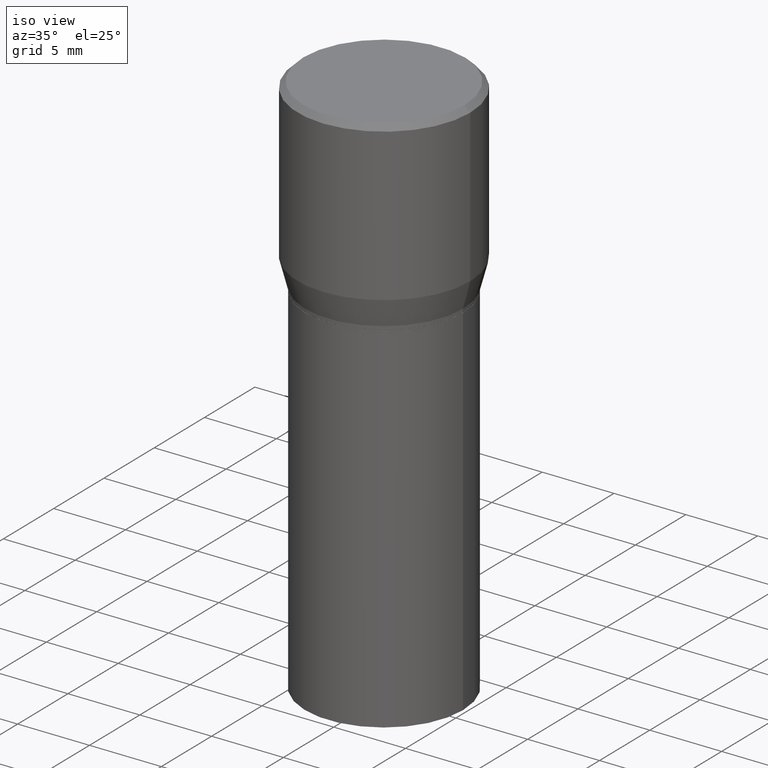
[diagram: clean part render]
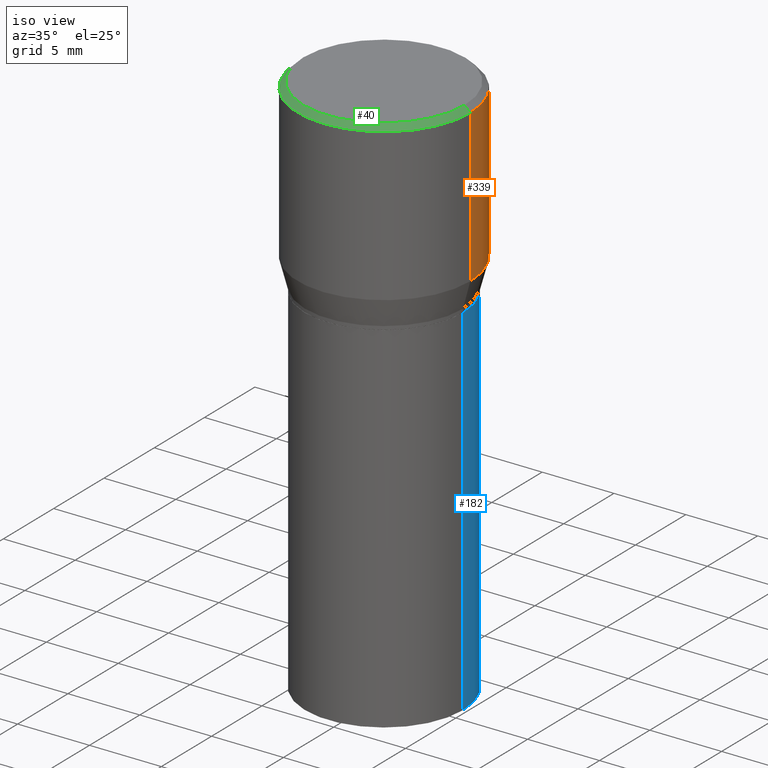
[diagram: same view with three faces highlighted in distinct colors, each labeled with its STEP entity id]
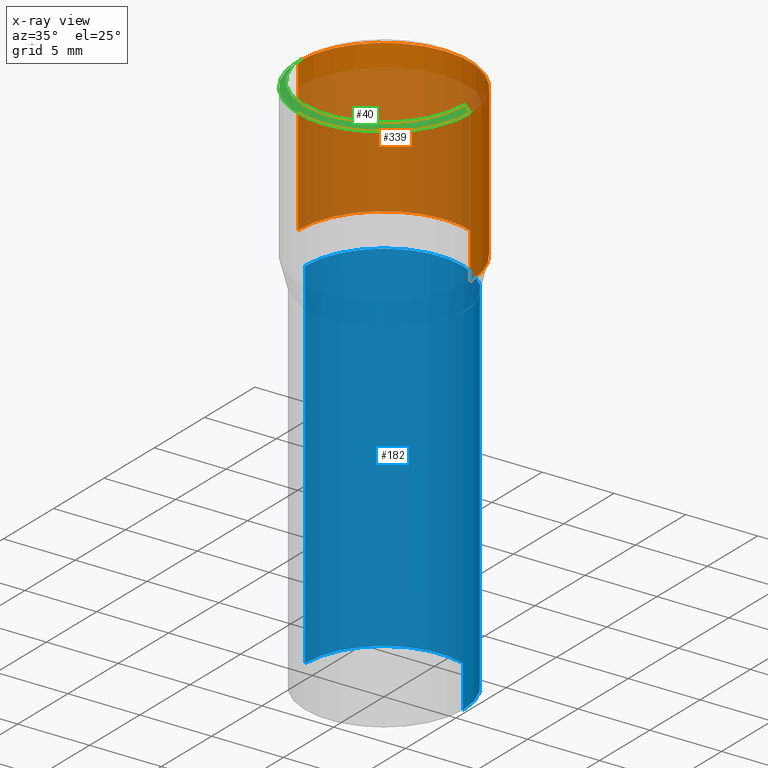
[diagram: x-ray of the same camera — body ghosted, the three highlighted faces saturated]
A machine part, iso view with three faces highlighted in distinct colors.
The next image is the same camera in x-ray (body ghosted, the three faces saturated) — at least one of them is partly hidden behind the body in this view.
Their STEP definitions:

[orange] entity #339 — the highlighted cylindrical surface (partial cylindrical patch) has radius 5.9995 mm, axis along (-0, 0, 1).
#6 = ORIENTED_EDGE ( 'NONE', *, *, #303, .T. ) ;
#7 = DIRECTION ( 'NONE',  ( 1.000000000000000000, -6.982962677686266711E-15, 4.876176775795936353E-29 ) ) ;
#20 = CARTESIAN_POINT ( 'NONE',  ( 0.2361999999999999933, -3.158970817530236235E-15, -0.4323652016312719004 ) ) ;
#29 = AXIS2_PLACEMENT_3D ( 'NONE', #452, #135, #422 ) ;
#63 = DIRECTION ( 'NONE',  ( -2.445468806185136877E-29, 3.491481338843145188E-15, 1.000000000000000000 ) ) ;
#79 = ORIENTED_EDGE ( 'NONE', *, *, #121, .F. ) ;
#89 = CARTESIAN_POINT ( 'NONE',  ( 0.2361999999999999933, -1.701748004552143407E-15, -0.01499999999999999944 ) ) ;
#96 = DIRECTION ( 'NONE',  ( -2.445468806185136597E-29, 3.491481338843145583E-15, 1.000000000000000000 ) ) ;
#101 = LINE ( 'NONE', #195, #189 ) ;
#109 = DIRECTION ( 'NONE',  ( -2.445468806185136877E-29, 3.491481338843145188E-15, 1.000000000000000000 ) ) ;
#121 = EDGE_CURVE ( 'NONE', #256, #344, #101, .T. ) ;
#122 = CARTESIAN_POINT ( 'NONE',  ( -0.2361999999999999933, 8.973183152936629998E-16, -0.01499999999999999944 ) ) ;
#130 = FACE_OUTER_BOUND ( 'NONE', #184, .T. ) ;
#135 = DIRECTION ( 'NONE',  ( -2.445468806185136597E-29, 3.491481338843145583E-15, 1.000000000000000000 ) ) ;
#172 = CIRCLE ( 'NONE', #29, 0.2361999999999999933 ) ;
#181 = VERTEX_POINT ( 'NONE', #391 ) ;
#183 = ORIENTED_EDGE ( 'NONE', *, *, #295, .T. ) ;
#184 = EDGE_LOOP ( 'NONE', ( #6, #183, #306, #79 ) ) ;
#189 = VECTOR ( 'NONE', #63, 39.37007874015748143 ) ;
#190 = VECTOR ( 'NONE', #109, 39.37007874015748143 ) ;
#195 = CARTESIAN_POINT ( 'NONE',  ( 0.2361999999999999933, -1.649375784469496131E-15, 1.151752954443000088E-29 ) ) ;
#210 = EDGE_CURVE ( 'NONE', #344, #261, #172, .T. ) ;
#214 = CARTESIAN_POINT ( 'NONE',  ( -0.2361999999999999933, 1.678301941865356591E-15, -1.161852468318208757E-29 ) ) ;
#251 = CIRCLE ( 'NONE', #454, 0.2361999999999999933 ) ;
#256 = VERTEX_POINT ( 'NONE', #20 ) ;
#261 = VERTEX_POINT ( 'NONE', #122 ) ;
#269 = CYLINDRICAL_SURFACE ( 'NONE', #323, 0.2361999999999999933 ) ;
#295 = EDGE_CURVE ( 'NONE', #181, #261, #459, .T. ) ;
#303 = EDGE_CURVE ( 'NONE', #256, #181, #251, .T. ) ;
#306 = ORIENTED_EDGE ( 'NONE', *, *, #210, .F. ) ;
#310 = DIRECTION ( 'NONE',  ( -2.445468806185136597E-29, 3.491481338843145583E-15, 1.000000000000000000 ) ) ;
#323 = AXIS2_PLACEMENT_3D ( 'NONE', #337, #96, #7 ) ;
#337 = CARTESIAN_POINT ( 'NONE',  ( 0.000000000000000000, 0.000000000000000000, 0.000000000000000000 ) ) ;
#339 = ADVANCED_FACE ( 'NONE', ( #130 ), #269, .T. ) ;
#344 = VERTEX_POINT ( 'NONE', #89 ) ;
#391 = CARTESIAN_POINT ( 'NONE',  ( -0.2361999999999999933, 1.687069088046168326E-16, -0.4323652016312719004 ) ) ;
#392 = CARTESIAN_POINT ( 'NONE',  ( 1.057335613469222325E-29, -1.509595033060739709E-15, -0.4323652016312719004 ) ) ;
#403 = DIRECTION ( 'NONE',  ( 1.000000000000000000, -6.982962677686268288E-15, 0.000000000000000000 ) ) ;
#422 = DIRECTION ( 'NONE',  ( 1.000000000000000000, -6.982962677686266711E-15, 0.000000000000000000 ) ) ;
#452 = CARTESIAN_POINT ( 'NONE',  ( 3.668203209277705088E-31, -5.237222008264718399E-17, -0.01499999999999999944 ) ) ;
#454 = AXIS2_PLACEMENT_3D ( 'NONE', #392, #310, #403 ) ;
#459 = LINE ( 'NONE', #214, #190 ) ;

[blue] entity #182 — the highlighted cylindrical surface (partial cylindrical patch) has radius 5.5004 mm, axis along (-0, 0, 1).
#23 = VERTEX_POINT ( 'NONE', #75 ) ;
#25 = DIRECTION ( 'NONE',  ( -2.445468806185136597E-29, 3.491481338843145583E-15, 1.000000000000000000 ) ) ;
#47 = EDGE_CURVE ( 'NONE', #419, #171, #405, .T. ) ;
#59 = ORIENTED_EDGE ( 'NONE', *, *, #47, .T. ) ;
#64 = VERTEX_POINT ( 'NONE', #132 ) ;
#75 = CARTESIAN_POINT ( 'NONE',  ( -0.2165500000000000203, -1.980209173064567670E-15, -0.5157000000000001583 ) ) ;
#88 = EDGE_LOOP ( 'NONE', ( #59, #220, #340, #397 ) ) ;
#98 = CIRCLE ( 'NONE', #263, 0.2165500000000000203 ) ;
#106 = CARTESIAN_POINT ( 'NONE',  ( 0.000000000000000000, 0.000000000000000000, 0.000000000000000000 ) ) ;
#111 = DIRECTION ( 'NONE',  ( 1.000000000000000000, -6.982962677686264344E-15, 0.000000000000000000 ) ) ;
#126 = EDGE_CURVE ( 'NONE', #64, #23, #98, .T. ) ;
#132 = CARTESIAN_POINT ( 'NONE',  ( 0.2165500000000000203, -3.312717494294371784E-15, -0.5157000000000001583 ) ) ;
#134 = VECTOR ( 'NONE', #451, 39.37007874015748143 ) ;
#169 = CARTESIAN_POINT ( 'NONE',  ( -0.2165500000000000203, 1.538680294288497096E-15, -1.065195393794699923E-29 ) ) ;
#171 = VERTEX_POINT ( 'NONE', #208 ) ;
#182 = ADVANCED_FACE ( 'NONE', ( #280 ), #319, .T. ) ;
#193 = LINE ( 'NONE', #406, #353 ) ;
#208 = CARTESIAN_POINT ( 'NONE',  ( -0.2165500000000000203, -1.980209173064567670E-15, -1.500000000000000222 ) ) ;
#212 = CARTESIAN_POINT ( 'NONE',  ( 0.2165500000000000203, -6.749382576117678999E-15, -1.500000000000000222 ) ) ;
#220 = ORIENTED_EDGE ( 'NONE', *, *, #416, .T. ) ;
#230 = DIRECTION ( 'NONE',  ( -2.445468806185136877E-29, 3.491481338843145188E-15, 1.000000000000000000 ) ) ;
#233 = LINE ( 'NONE', #169, #134 ) ;
#241 = DIRECTION ( 'NONE',  ( -2.445468806185136597E-29, 3.491481338843145583E-15, 1.000000000000000000 ) ) ;
#257 = CARTESIAN_POINT ( 'NONE',  ( 3.668203209277704895E-29, -5.237222008264718177E-15, -1.500000000000000222 ) ) ;
#262 = DIRECTION ( 'NONE',  ( 1.000000000000000000, -6.982962677686265133E-15, 0.000000000000000000 ) ) ;
#263 = AXIS2_PLACEMENT_3D ( 'NONE', #298, #241, #262 ) ;
#280 = FACE_OUTER_BOUND ( 'NONE', #88, .T. ) ;
#298 = CARTESIAN_POINT ( 'NONE',  ( 1.261128263349675426E-29, -1.800556926441410962E-15, -0.5157000000000001583 ) ) ;
#319 = CYLINDRICAL_SURFACE ( 'NONE', #395, 0.2165500000000000203 ) ;
#322 = AXIS2_PLACEMENT_3D ( 'NONE', #257, #332, #111 ) ;
#332 = DIRECTION ( 'NONE',  ( -2.445468806185136597E-29, 3.491481338843145583E-15, 1.000000000000000000 ) ) ;
#340 = ORIENTED_EDGE ( 'NONE', *, *, #126, .F. ) ;
#353 = VECTOR ( 'NONE', #230, 39.37007874015748143 ) ;
#355 = DIRECTION ( 'NONE',  ( 1.000000000000000000, -6.982962677686266711E-15, 4.876176775795935793E-29 ) ) ;
#365 = EDGE_CURVE ( 'NONE', #419, #64, #193, .T. ) ;
#395 = AXIS2_PLACEMENT_3D ( 'NONE', #106, #25, #355 ) ;
#397 = ORIENTED_EDGE ( 'NONE', *, *, #365, .F. ) ;
#405 = CIRCLE ( 'NONE', #322, 0.2165500000000000203 ) ;
#406 = CARTESIAN_POINT ( 'NONE',  ( 0.2165500000000000203, -1.512160567852961217E-15, 1.055936080798610036E-29 ) ) ;
#416 = EDGE_CURVE ( 'NONE', #171, #23, #233, .T. ) ;
#419 = VERTEX_POINT ( 'NONE', #212 ) ;
#451 = DIRECTION ( 'NONE',  ( -2.445468806185136877E-29, 3.491481338843145188E-15, 1.000000000000000000 ) ) ;

[green] entity #40 — the highlighted conical surface has half-angle 45 deg.
#13 = DIRECTION ( 'NONE',  ( -2.445468806185136597E-29, 3.491481338843145583E-15, 1.000000000000000000 ) ) ;
#40 = ADVANCED_FACE ( 'NONE', ( #430 ), #360, .T. ) ;
#51 = CARTESIAN_POINT ( 'NONE',  ( -1.149724336312568861E-45, 1.641501643732376549E-31, 4.701447564592356200E-17 ) ) ;
#65 = ORIENTED_EDGE ( 'NONE', *, *, #412, .F. ) ;
#66 = EDGE_CURVE ( 'NONE', #199, #411, #418, .T. ) ;
#78 = DIRECTION ( 'NONE',  ( -1.000000000000000000, 6.982962677686266711E-15, 0.000000000000000000 ) ) ;
#89 = CARTESIAN_POINT ( 'NONE',  ( 0.2361999999999999933, -1.701748004552143407E-15, -0.01499999999999999944 ) ) ;
#91 = EDGE_LOOP ( 'NONE', ( #65, #203, #237, #225 ) ) ;
#94 = DIRECTION ( 'NONE',  ( 0.7071067811865459074, -7.319954787623251312E-15, -0.7071067811865492381 ) ) ;
#122 = CARTESIAN_POINT ( 'NONE',  ( -0.2361999999999999933, 8.973183152936629998E-16, -0.01499999999999999944 ) ) ;
#127 = AXIS2_PLACEMENT_3D ( 'NONE', #139, #278, #78 ) ;
#139 = CARTESIAN_POINT ( 'NONE',  ( 3.668203209277705088E-31, -5.237222008264718399E-17, -0.01499999999999999944 ) ) ;
#142 = CARTESIAN_POINT ( 'NONE',  ( -0.2212000000000000077, 1.570817454345525709E-15, 4.701447564591266586E-17 ) ) ;
#160 = EDGE_CURVE ( 'NONE', #261, #344, #363, .T. ) ;
#176 = CARTESIAN_POINT ( 'NONE',  ( -0.2361999999999999933, 1.597003564386848854E-15, -0.01499999999999999944 ) ) ;
#198 = EDGE_CURVE ( 'NONE', #199, #261, #247, .T. ) ;
#199 = VERTEX_POINT ( 'NONE', #142 ) ;
#203 = ORIENTED_EDGE ( 'NONE', *, *, #66, .F. ) ;
#225 = ORIENTED_EDGE ( 'NONE', *, *, #160, .T. ) ;
#237 = ORIENTED_EDGE ( 'NONE', *, *, #198, .T. ) ;
#246 = VECTOR ( 'NONE', #390, 39.37007874015748143 ) ;
#247 = LINE ( 'NONE', #176, #246 ) ;
#250 = AXIS2_PLACEMENT_3D ( 'NONE', #51, #342, #439 ) ;
#261 = VERTEX_POINT ( 'NONE', #122 ) ;
#266 = LINE ( 'NONE', #410, #382 ) ;
#278 = DIRECTION ( 'NONE',  ( 2.445468806185136597E-29, -3.491481338843145583E-15, -1.000000000000000000 ) ) ;
#300 = DIRECTION ( 'NONE',  ( 1.000000000000000000, -6.982962677686266711E-15, 0.000000000000000000 ) ) ;
#328 = AXIS2_PLACEMENT_3D ( 'NONE', #338, #13, #300 ) ;
#338 = CARTESIAN_POINT ( 'NONE',  ( 3.668203209277705088E-31, -5.237222008264718399E-17, -0.01499999999999999944 ) ) ;
#342 = DIRECTION ( 'NONE',  ( -2.445468806185136597E-29, 3.491481338843145583E-15, 1.000000000000000000 ) ) ;
#344 = VERTEX_POINT ( 'NONE', #89 ) ;
#360 = CONICAL_SURFACE ( 'NONE', #127, 0.2361999999999999933, 0.7853981633974459475 ) ;
#363 = CIRCLE ( 'NONE', #328, 0.2361999999999999933 ) ;
#382 = VECTOR ( 'NONE', #94, 39.37007874015748143 ) ;
#390 = DIRECTION ( 'NONE',  ( -0.7071067811865459074, 2.468850131082239706E-15, -0.7071067811865492381 ) ) ;
#410 = CARTESIAN_POINT ( 'NONE',  ( 0.2361999999999999933, -1.672821847156282947E-15, -0.01499999999999999944 ) ) ;
#411 = VERTEX_POINT ( 'NONE', #444 ) ;
#412 = EDGE_CURVE ( 'NONE', #411, #344, #266, .T. ) ;
#418 = CIRCLE ( 'NONE', #250, 0.2212000000000000077 ) ;
#430 = FACE_OUTER_BOUND ( 'NONE', #91, .T. ) ;
#439 = DIRECTION ( 'NONE',  ( 1.000000000000000000, -6.982962677686267499E-15, 4.877828720335458505E-29 ) ) ;
#444 = CARTESIAN_POINT ( 'NONE',  ( 0.2212000000000000077, -1.595182002131672613E-15, 4.701447564593453826E-17 ) ) ;